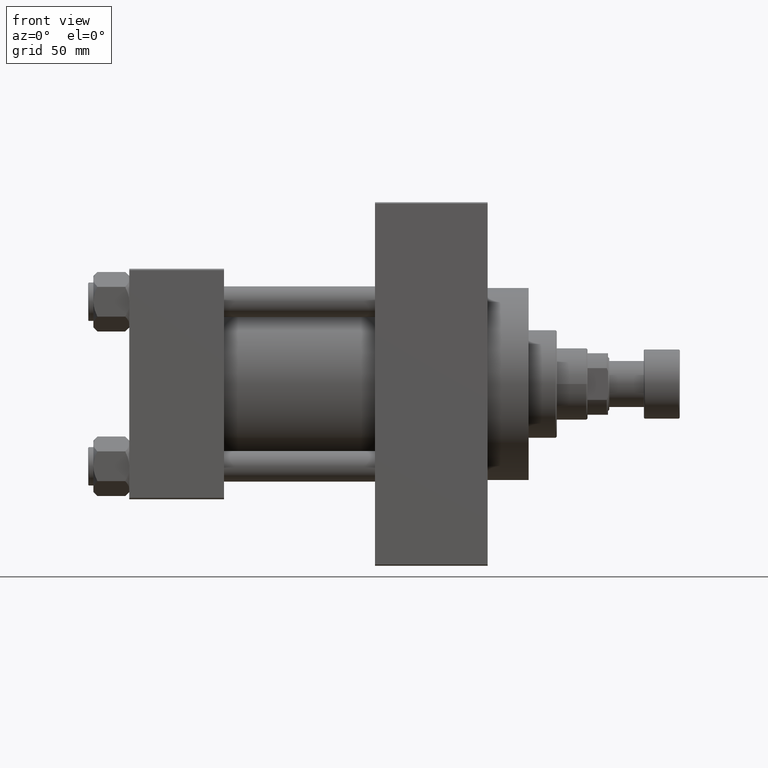
[diagram: clean part render]
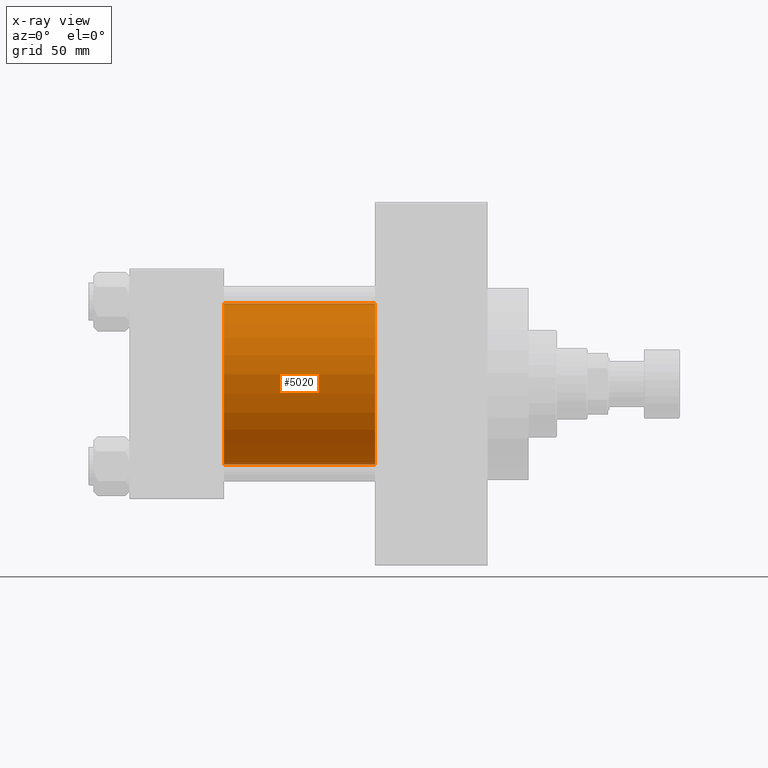
[diagram: x-ray — body ghosted, one internal face saturated and labeled with its STEP entity id]
A machine part, front view, then the same camera in x-ray: the body is ghosted and one INTERNAL B-rep face — a face not visible from any outside direction — is saturated and labeled: STEP entity #5020.
In plain terms, the highlighted cylindrical surface (partial cylindrical patch) has radius 31.5 mm, axis along (-1, -0, -0).
Its self-contained STEP definition (entity closure, byte-faithful):
#2498 = CARTESIAN_POINT ( 'NONE',  ( 37.00000000000000000, -2.602085213965210642E-15, 0.000000000000000000 ) ) ;
#4671 = CARTESIAN_POINT ( 'NONE',  ( 96.00000000000000000, -2.602085213965210642E-15, 0.000000000000000000 ) ) ;
#4905 = ORIENTED_EDGE ( 'NONE', *, *, #28375, .F. ) ;
#4982 = DIRECTION ( 'NONE',  ( 0.000000000000000000, 0.000000000000000000, 1.000000000000000000 ) ) ;
#4997 = AXIS2_PLACEMENT_3D ( 'NONE', #5212, #38025, #4982 ) ;
#5020 = ADVANCED_FACE ( 'NONE', ( #41401 ), #38264, .F. ) ;
#5124 = ORIENTED_EDGE ( 'NONE', *, *, #36547, .F. ) ;
#5212 = CARTESIAN_POINT ( 'NONE',  ( 96.00000000000000000, -2.602085213965210642E-15, 0.000000000000000000 ) ) ;
#9905 = CARTESIAN_POINT ( 'NONE',  ( 96.00000000000000000, 1.255552203348951850E-15, -31.50000000000000000 ) ) ;
#10289 = CARTESIAN_POINT ( 'NONE',  ( 96.00000000000000000, -2.602085213965210642E-15, 31.50000000000000000 ) ) ;
#12309 = VERTEX_POINT ( 'NONE', #31738 ) ;
#12670 = EDGE_LOOP ( 'NONE', ( #27055, #20571, #5124, #4905 ) ) ;
#13574 = VERTEX_POINT ( 'NONE', #32241 ) ;
#14101 = EDGE_CURVE ( 'NONE', #13574, #44631, #32077, .T. ) ;
#16234 = DIRECTION ( 'NONE',  ( 0.000000000000000000, 0.000000000000000000, -1.000000000000000000 ) ) ;
#16493 = DIRECTION ( 'NONE',  ( 0.000000000000000000, 0.000000000000000000, -1.000000000000000000 ) ) ;
#18525 = CARTESIAN_POINT ( 'NONE',  ( 37.00000000000000000, 1.255552203348951850E-15, -31.50000000000000000 ) ) ;
#19374 = DIRECTION ( 'NONE',  ( 1.000000000000000000, 0.000000000000000000, 0.000000000000000000 ) ) ;
#20571 = ORIENTED_EDGE ( 'NONE', *, *, #14101, .T. ) ;
#23983 = AXIS2_PLACEMENT_3D ( 'NONE', #2498, #27344, #16493 ) ;
#24996 = CIRCLE ( 'NONE', #41977, 31.50000000000000000 ) ;
#27055 = ORIENTED_EDGE ( 'NONE', *, *, #47002, .T. ) ;
#27344 = DIRECTION ( 'NONE',  ( 1.000000000000000000, 0.000000000000000000, 0.000000000000000000 ) ) ;
#27622 = LINE ( 'NONE', #38713, #33138 ) ;
#28375 = EDGE_CURVE ( 'NONE', #42122, #12309, #27622, .T. ) ;
#31738 = CARTESIAN_POINT ( 'NONE',  ( 37.00000000000000000, -2.602085213965210642E-15, 31.50000000000000000 ) ) ;
#32077 = LINE ( 'NONE', #9905, #44541 ) ;
#32241 = CARTESIAN_POINT ( 'NONE',  ( 96.00000000000000000, 1.255552203348951850E-15, -31.50000000000000000 ) ) ;
#33138 = VECTOR ( 'NONE', #35341, 1000.000000000000000 ) ;
#34990 = DIRECTION ( 'NONE',  ( -1.000000000000000000, -0.000000000000000000, -0.000000000000000000 ) ) ;
#35341 = DIRECTION ( 'NONE',  ( -1.000000000000000000, -0.000000000000000000, -0.000000000000000000 ) ) ;
#36547 = EDGE_CURVE ( 'NONE', #12309, #44631, #44779, .T. ) ;
#38025 = DIRECTION ( 'NONE',  ( -1.000000000000000000, -0.000000000000000000, -0.000000000000000000 ) ) ;
#38264 = CYLINDRICAL_SURFACE ( 'NONE', #4997, 31.50000000000000000 ) ;
#38713 = CARTESIAN_POINT ( 'NONE',  ( 96.00000000000000000, -2.602085213965210642E-15, 31.50000000000000000 ) ) ;
#41401 = FACE_OUTER_BOUND ( 'NONE', #12670, .T. ) ;
#41977 = AXIS2_PLACEMENT_3D ( 'NONE', #4671, #19374, #16234 ) ;
#42122 = VERTEX_POINT ( 'NONE', #10289 ) ;
#44541 = VECTOR ( 'NONE', #34990, 1000.000000000000000 ) ;
#44631 = VERTEX_POINT ( 'NONE', #18525 ) ;
#44779 = CIRCLE ( 'NONE', #23983, 31.50000000000000000 ) ;
#47002 = EDGE_CURVE ( 'NONE', #42122, #13574, #24996, .T. ) ;